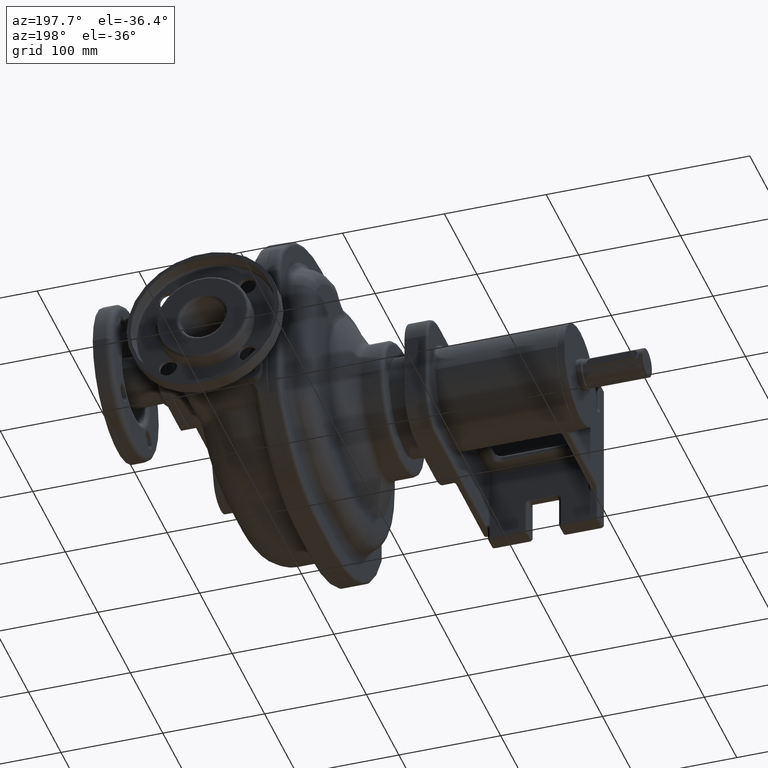
[diagram: clean part render]
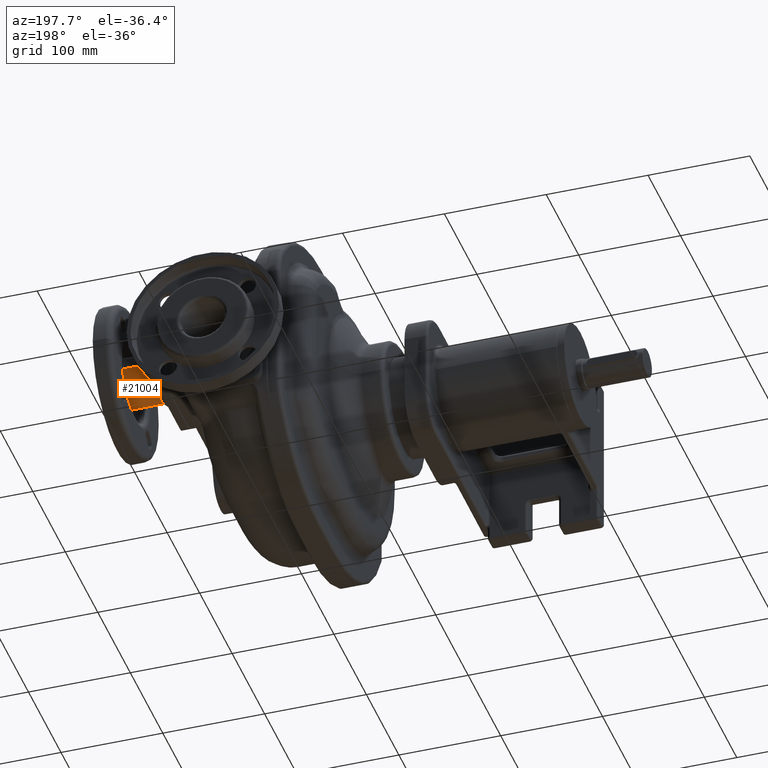
[diagram: same view with one face highlighted and labeled with its STEP entity id]
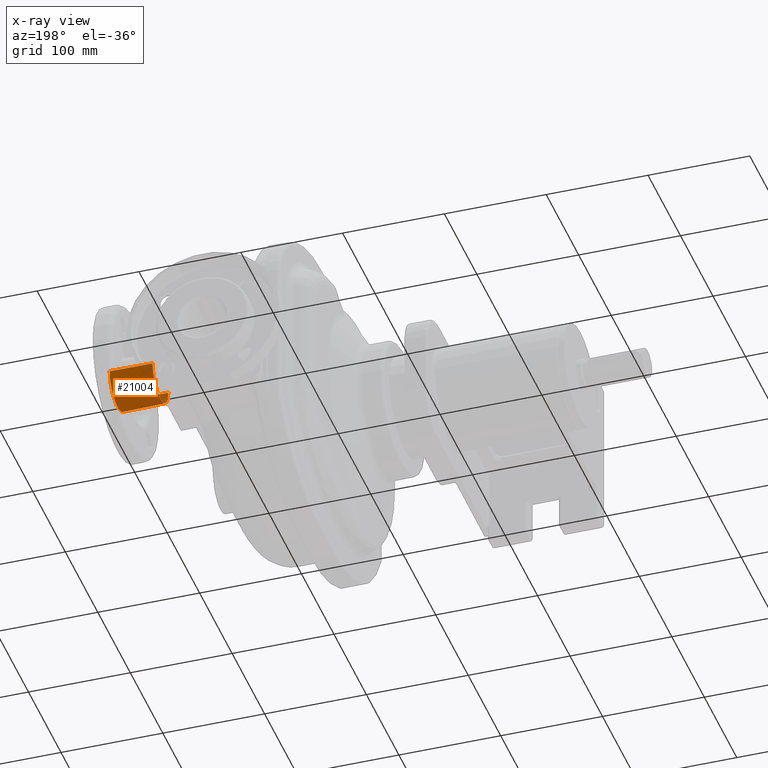
[diagram: x-ray of the same camera — body ghosted, the highlighted face saturated]
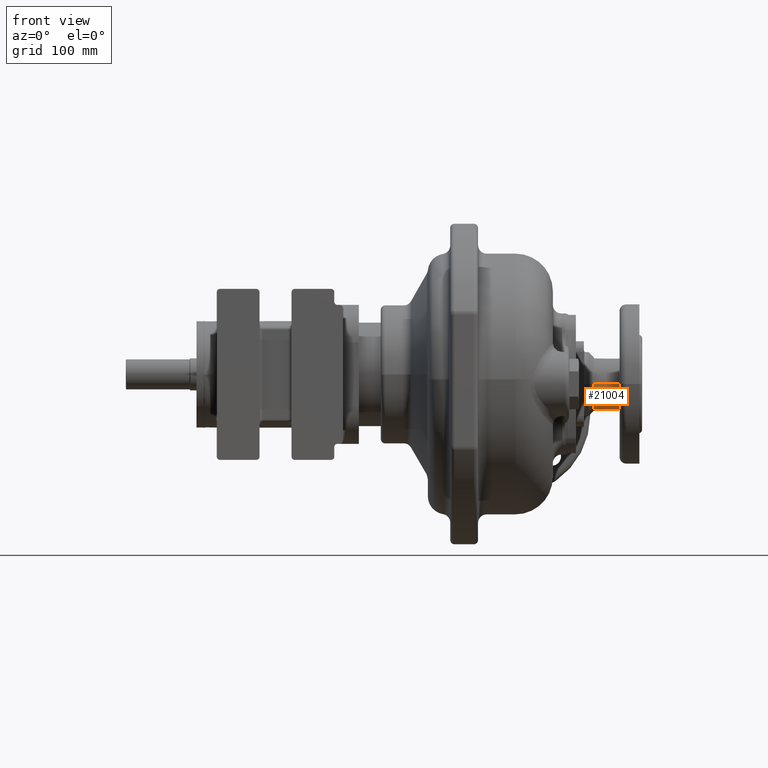
[diagram: same view with one face highlighted and labeled with its STEP entity id]
A machine part, auxiliary view. The second image highlights one B-rep face of the part: STEP entity #21004.
The next image is the same camera in x-ray: the body ghosted, the highlighted face saturated — about 8% of this face is hidden behind the body in this view.
A second angle (front view) of the same face is appended — the face is thin or edge-on in the first view.
In plain terms, the highlighted conical surface has half-angle 0.682 deg.
Its self-contained STEP definition (entity closure, byte-faithful):
#6952=CARTESIAN_POINT('',(9.8E1,1.27E2,-9.E0));
#6953=DIRECTION('',(1.E0,0.E0,0.E0));
#6954=DIRECTION('',(0.E0,-1.E0,0.E0));
#6955=AXIS2_PLACEMENT_3D('',#6952,#6953,#6954);
#6962=CARTESIAN_POINT('',(1.400059515376E2,1.27E2,-9.E0));
#6963=DIRECTION('',(1.E0,0.E0,0.E0));
#6964=DIRECTION('',(0.E0,-1.E0,0.E0));
#6965=AXIS2_PLACEMENT_3D('',#6962,#6963,#6964);
#6967=DIRECTION('',(-9.999291558917E-1,-1.190307514028E-2,0.E0));
#6968=VECTOR('',#6967,4.200892762259E1);
#6969=CARTESIAN_POINT('',(1.400059515376E2,1.516500354221E2,-9.E0));
#6970=LINE('',#6969,#6968);
#6976=DIRECTION('',(-9.999291558917E-1,1.190307514028E-2,0.E0));
#6977=VECTOR('',#6976,4.200892762259E1);
#6978=CARTESIAN_POINT('',(1.400059515376E2,1.023499645779E2,-9.E0));
#6979=LINE('',#6978,#6977);
#9748=CARTESIAN_POINT('',(1.400059515376E2,1.023499645779E2,-9.E0));
#9750=VERTEX_POINT('',#9748);
#9760=CARTESIAN_POINT('',(1.400059515376E2,1.516500354221E2,-9.E0));
#9762=VERTEX_POINT('',#9760);
#9859=CARTESIAN_POINT('',(9.8E1,1.0285E2,-9.E0));
#9860=CARTESIAN_POINT('',(9.8E1,1.5115E2,-9.E0));
#9861=VERTEX_POINT('',#9859);
#9862=VERTEX_POINT('',#9860);
#20990=CARTESIAN_POINT('',(1.190029757688E2,1.27E2,-9.E0));
#20991=DIRECTION('',(1.E0,0.E0,0.E0));
#20992=DIRECTION('',(0.E0,1.E0,0.E0));
#20993=AXIS2_PLACEMENT_3D('',#20990,#20991,#20992);
#20994=CONICAL_SURFACE('',#20993,2.440001771103E1,6.820120743535E-1);
#20995=ORIENTED_EDGE('',*,*,#20983,.F.);
#20997=ORIENTED_EDGE('',*,*,#20996,.F.);
#20999=ORIENTED_EDGE('',*,*,#20998,.T.);
#21001=ORIENTED_EDGE('',*,*,#21000,.T.);
#21002=EDGE_LOOP('',(#20995,#20997,#20999,#21001));
#21003=FACE_OUTER_BOUND('',#21002,.F.);
#21004=ADVANCED_FACE('',(#21003),#20994,.T.);
#6956=CIRCLE('',#6955,2.415E1);
#6966=CIRCLE('',#6965,2.465003542205E1);
#20983=EDGE_CURVE('',#9861,#9862,#6956,.T.);
#20996=EDGE_CURVE('',#9750,#9861,#6979,.T.);
#20998=EDGE_CURVE('',#9750,#9762,#6966,.T.);
#21000=EDGE_CURVE('',#9762,#9862,#6970,.T.);